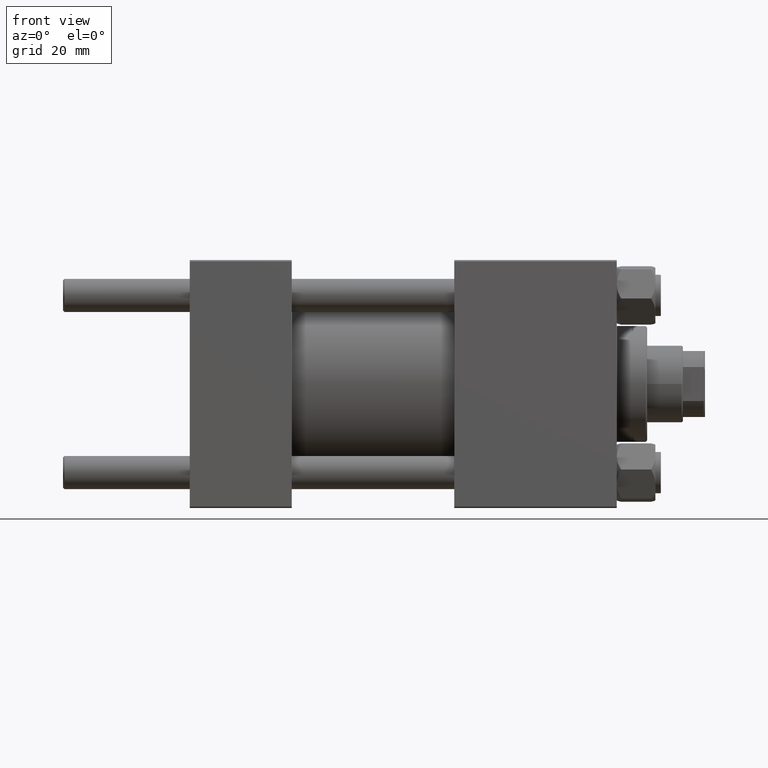
[diagram: clean part render]
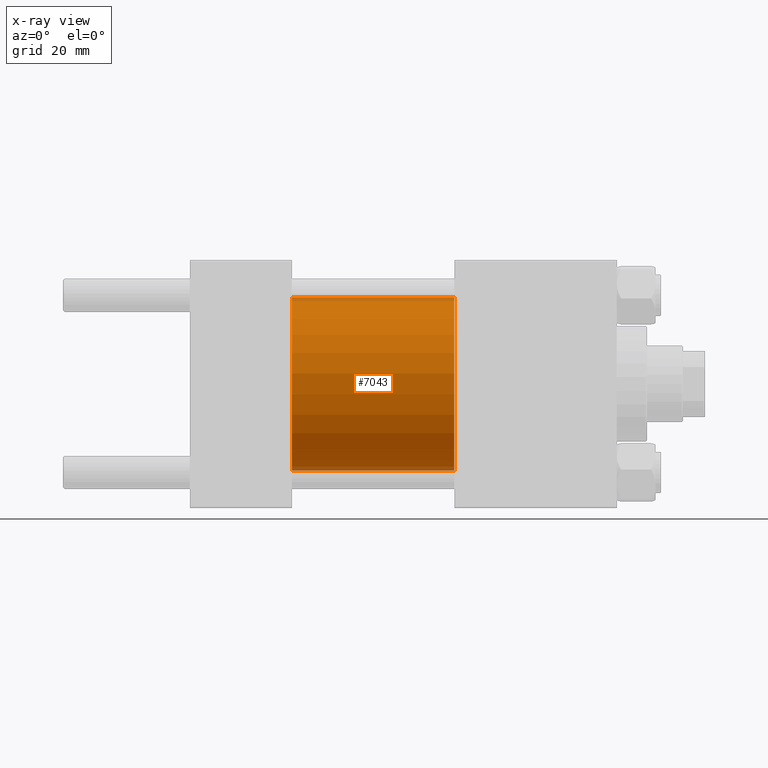
[diagram: x-ray — body ghosted, one internal face saturated and labeled with its STEP entity id]
A machine part, front view, then the same camera in x-ray: the body is ghosted and one INTERNAL B-rep face — a face not visible from any outside direction — is saturated and labeled: STEP entity #7043.
In plain terms, the highlighted cylindrical surface (partial cylindrical patch) has radius 31.5 mm, axis along (-1, -0, -0).
Its self-contained STEP definition (entity closure, byte-faithful):
#1205 = LINE ( 'NONE', #20970, #32989 ) ;
#1810 = CARTESIAN_POINT ( 'NONE',  ( 96.00000000000000000, 0.000000000000000000, 31.50000000000000000 ) ) ;
#1885 = VERTEX_POINT ( 'NONE', #1810 ) ;
#2411 = CIRCLE ( 'NONE', #29077, 31.50000000000000000 ) ;
#2502 = DIRECTION ( 'NONE',  ( 1.000000000000000000, 0.000000000000000000, 0.000000000000000000 ) ) ;
#3925 = EDGE_LOOP ( 'NONE', ( #40800, #31604, #33654, #12734 ) ) ;
#6737 = VERTEX_POINT ( 'NONE', #30194 ) ;
#7043 = ADVANCED_FACE ( 'NONE', ( #42764 ), #39461, .F. ) ;
#8371 = AXIS2_PLACEMENT_3D ( 'NONE', #39702, #12660, #8882 ) ;
#8882 = DIRECTION ( 'NONE',  ( 0.000000000000000000, 0.000000000000000000, 1.000000000000000000 ) ) ;
#11753 = LINE ( 'NONE', #19104, #19820 ) ;
#12660 = DIRECTION ( 'NONE',  ( -1.000000000000000000, -0.000000000000000000, -0.000000000000000000 ) ) ;
#12734 = ORIENTED_EDGE ( 'NONE', *, *, #46629, .F. ) ;
#15138 = VERTEX_POINT ( 'NONE', #39328 ) ;
#15303 = DIRECTION ( 'NONE',  ( -1.000000000000000000, -0.000000000000000000, -0.000000000000000000 ) ) ;
#17670 = DIRECTION ( 'NONE',  ( -1.000000000000000000, -0.000000000000000000, -0.000000000000000000 ) ) ;
#19104 = CARTESIAN_POINT ( 'NONE',  ( 96.00000000000000000, 3.857637417314162689E-15, -31.50000000000000000 ) ) ;
#19820 = VECTOR ( 'NONE', #15303, 1000.000000000000000 ) ;
#20970 = CARTESIAN_POINT ( 'NONE',  ( 96.00000000000000000, 0.000000000000000000, 31.50000000000000000 ) ) ;
#22070 = EDGE_CURVE ( 'NONE', #1885, #6737, #28893, .T. ) ;
#22776 = CARTESIAN_POINT ( 'NONE',  ( 37.00000000000000000, 3.857637417314162689E-15, -31.50000000000000000 ) ) ;
#25784 = DIRECTION ( 'NONE',  ( 0.000000000000000000, 0.000000000000000000, -1.000000000000000000 ) ) ;
#28091 = EDGE_CURVE ( 'NONE', #15138, #46386, #2411, .T. ) ;
#28893 = CIRCLE ( 'NONE', #37735, 31.50000000000000000 ) ;
#29077 = AXIS2_PLACEMENT_3D ( 'NONE', #45521, #33925, #29887 ) ;
#29887 = DIRECTION ( 'NONE',  ( 0.000000000000000000, 0.000000000000000000, -1.000000000000000000 ) ) ;
#30194 = CARTESIAN_POINT ( 'NONE',  ( 96.00000000000000000, 3.857637417314162689E-15, -31.50000000000000000 ) ) ;
#31604 = ORIENTED_EDGE ( 'NONE', *, *, #38406, .T. ) ;
#32607 = CARTESIAN_POINT ( 'NONE',  ( 96.00000000000000000, 0.000000000000000000, 0.000000000000000000 ) ) ;
#32989 = VECTOR ( 'NONE', #17670, 1000.000000000000000 ) ;
#33654 = ORIENTED_EDGE ( 'NONE', *, *, #28091, .F. ) ;
#33925 = DIRECTION ( 'NONE',  ( 1.000000000000000000, 0.000000000000000000, 0.000000000000000000 ) ) ;
#37735 = AXIS2_PLACEMENT_3D ( 'NONE', #32607, #2502, #25784 ) ;
#38406 = EDGE_CURVE ( 'NONE', #6737, #46386, #11753, .T. ) ;
#39328 = CARTESIAN_POINT ( 'NONE',  ( 37.00000000000000000, 0.000000000000000000, 31.50000000000000000 ) ) ;
#39461 = CYLINDRICAL_SURFACE ( 'NONE', #8371, 31.50000000000000000 ) ;
#39702 = CARTESIAN_POINT ( 'NONE',  ( 96.00000000000000000, 0.000000000000000000, 0.000000000000000000 ) ) ;
#40800 = ORIENTED_EDGE ( 'NONE', *, *, #22070, .T. ) ;
#42764 = FACE_OUTER_BOUND ( 'NONE', #3925, .T. ) ;
#45521 = CARTESIAN_POINT ( 'NONE',  ( 37.00000000000000000, 0.000000000000000000, 0.000000000000000000 ) ) ;
#46386 = VERTEX_POINT ( 'NONE', #22776 ) ;
#46629 = EDGE_CURVE ( 'NONE', #1885, #15138, #1205, .T. ) ;